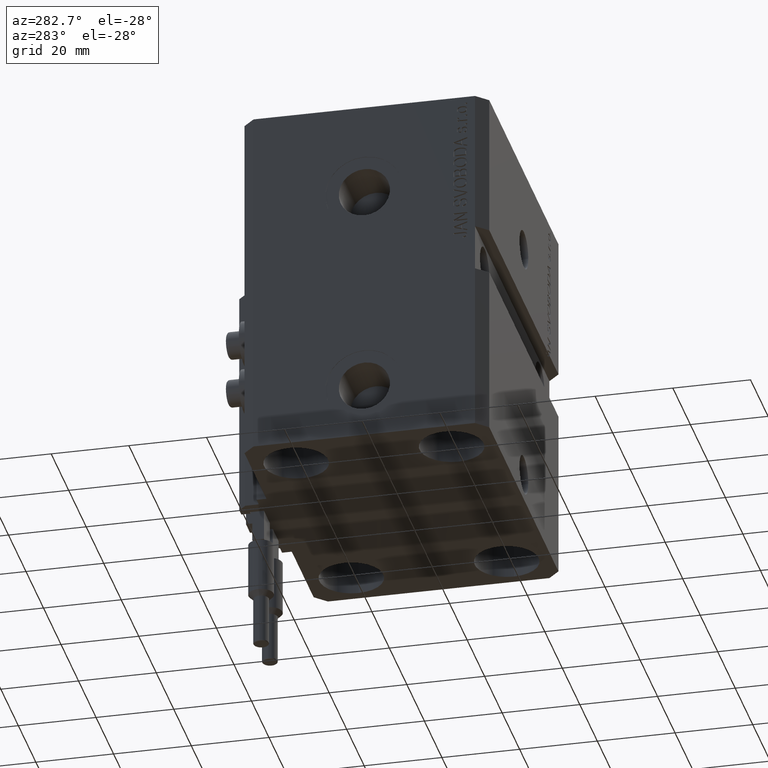
[diagram: clean part render]
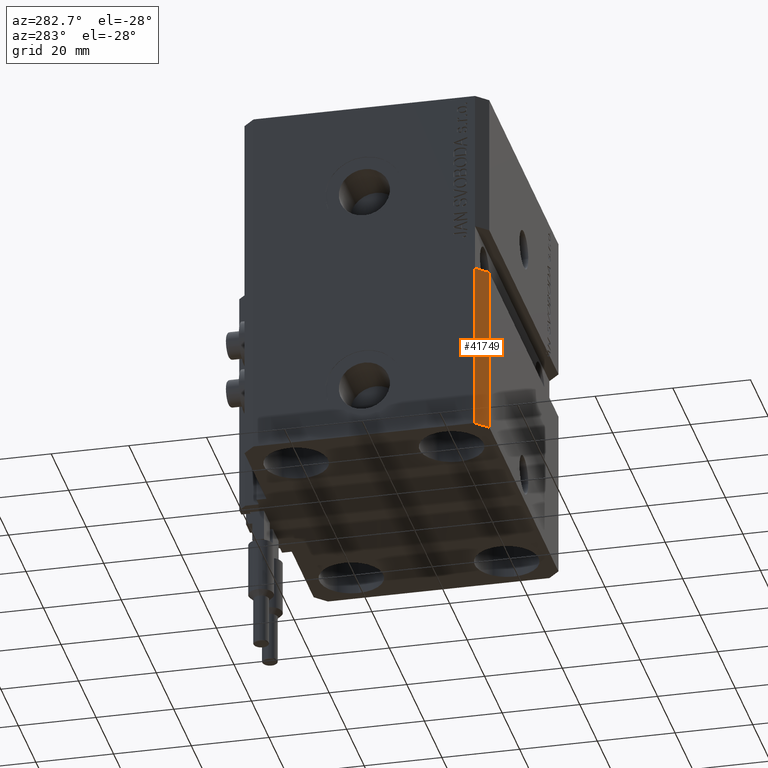
[diagram: same view with one face highlighted and labeled with its STEP entity id]
A machine part, auxiliary view. The second image highlights one B-rep face of the part: STEP entity #41749.
In plain terms, the highlighted planar face has unit normal (-0.7071, -0.7071, 0).
Its self-contained STEP definition (entity closure, byte-faithful):
#1347 = VERTEX_POINT ( 'NONE', #42546 ) ;
#1390 = CARTESIAN_POINT ( 'NONE',  ( -42.50000000000000000, -28.50000000000000711, -48.99999999999999289 ) ) ;
#2355 = LINE ( 'NONE', #24627, #22730 ) ;
#3196 = VECTOR ( 'NONE', #34893, 1000.000000000000000 ) ;
#6872 = FACE_OUTER_BOUND ( 'NONE', #35140, .T. ) ;
#8756 = CARTESIAN_POINT ( 'NONE',  ( -42.50000000000000000, -28.50000000000000000, -48.99999999999999289 ) ) ;
#9387 = CARTESIAN_POINT ( 'NONE',  ( -39.50000000000000711, -31.50000000000000000, -93.00000000000000000 ) ) ;
#12225 = LINE ( 'NONE', #8756, #18780 ) ;
#14553 = DIRECTION ( 'NONE',  ( 0.7071067811865471286, -0.7071067811865479058, 0.000000000000000000 ) ) ;
#15704 = DIRECTION ( 'NONE',  ( 0.7071067811865471286, -0.7071067811865479058, 0.000000000000000000 ) ) ;
#15776 = AXIS2_PLACEMENT_3D ( 'NONE', #22208, #48442, #14553 ) ;
#16047 = CARTESIAN_POINT ( 'NONE',  ( -39.50000000000000000, -31.50000000000000711, -48.99999999999999289 ) ) ;
#17952 = VECTOR ( 'NONE', #46074, 1000.000000000000000 ) ;
#18780 = VECTOR ( 'NONE', #15704, 1000.000000000000000 ) ;
#18990 = PLANE ( 'NONE',  #15776 ) ;
#19772 = VERTEX_POINT ( 'NONE', #16047 ) ;
#20143 = ORIENTED_EDGE ( 'NONE', *, *, #36617, .F. ) ;
#22208 = CARTESIAN_POINT ( 'NONE',  ( -42.50000000000000000, -28.50000000000000000, -93.00000000000000000 ) ) ;
#22730 = VECTOR ( 'NONE', #39698, 1000.000000000000000 ) ;
#23167 = EDGE_CURVE ( 'NONE', #40822, #1347, #2355, .T. ) ;
#24627 = CARTESIAN_POINT ( 'NONE',  ( -42.50000000000000000, -28.50000000000000000, -93.00000000000000000 ) ) ;
#24740 = CARTESIAN_POINT ( 'NONE',  ( -42.50000000000000000, -28.50000000000000000, -93.00000000000000000 ) ) ;
#27842 = ORIENTED_EDGE ( 'NONE', *, *, #23167, .T. ) ;
#30784 = EDGE_CURVE ( 'NONE', #1347, #19772, #38396, .T. ) ;
#32161 = CARTESIAN_POINT ( 'NONE',  ( -42.50000000000000000, -28.50000000000000000, -93.00000000000000000 ) ) ;
#34893 = DIRECTION ( 'NONE',  ( 0.000000000000000000, 0.000000000000000000, 1.000000000000000000 ) ) ;
#35140 = EDGE_LOOP ( 'NONE', ( #20143, #38429, #27842, #45318 ) ) ;
#35378 = LINE ( 'NONE', #32161, #3196 ) ;
#36617 = EDGE_CURVE ( 'NONE', #43919, #19772, #12225, .T. ) ;
#38396 = LINE ( 'NONE', #9387, #17952 ) ;
#38429 = ORIENTED_EDGE ( 'NONE', *, *, #42228, .F. ) ;
#39698 = DIRECTION ( 'NONE',  ( 0.7071067811865471286, -0.7071067811865479058, 0.000000000000000000 ) ) ;
#40822 = VERTEX_POINT ( 'NONE', #24740 ) ;
#41749 = ADVANCED_FACE ( 'NONE', ( #6872 ), #18990, .T. ) ;
#42228 = EDGE_CURVE ( 'NONE', #40822, #43919, #35378, .T. ) ;
#42546 = CARTESIAN_POINT ( 'NONE',  ( -39.50000000000000711, -31.50000000000000000, -93.00000000000000000 ) ) ;
#43919 = VERTEX_POINT ( 'NONE', #1390 ) ;
#45318 = ORIENTED_EDGE ( 'NONE', *, *, #30784, .T. ) ;
#46074 = DIRECTION ( 'NONE',  ( 0.000000000000000000, 0.000000000000000000, 1.000000000000000000 ) ) ;
#48442 = DIRECTION ( 'NONE',  ( -0.7071067811865479058, -0.7071067811865471286, 0.000000000000000000 ) ) ;